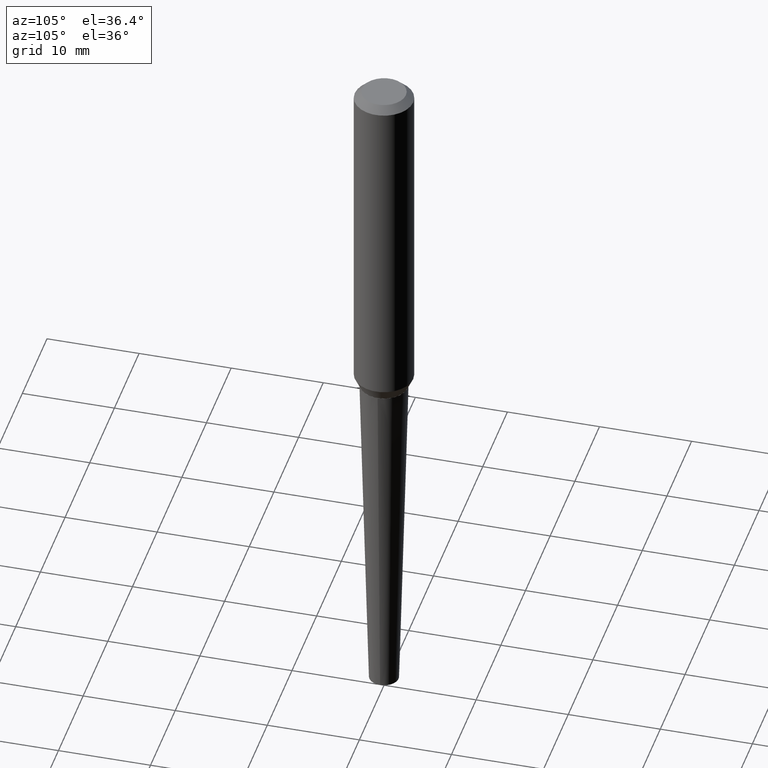
[diagram: clean part render]
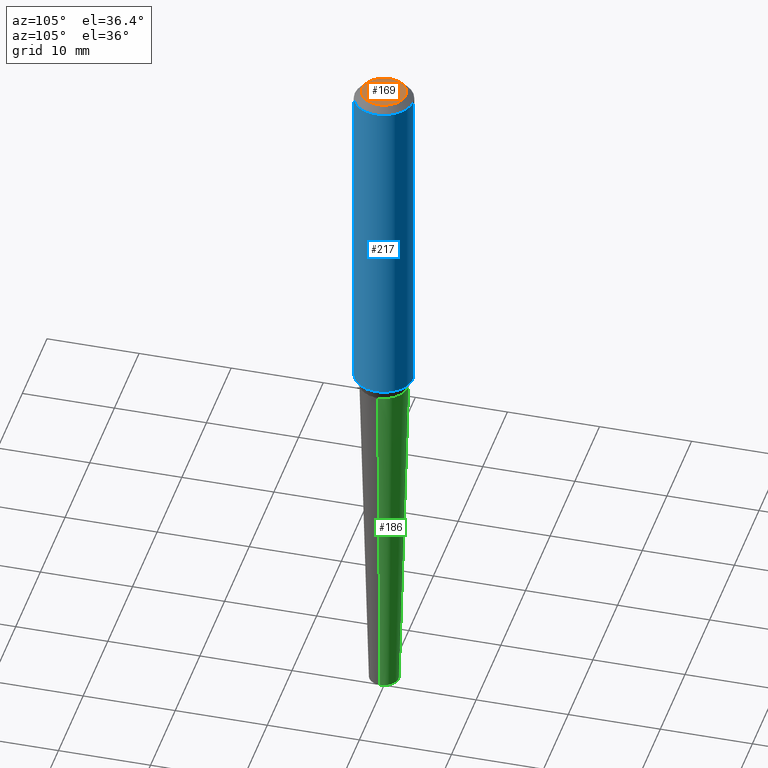
[diagram: same view with three faces highlighted in distinct colors, each labeled with its STEP entity id]
A machine part, auxiliary view with three faces highlighted in distinct colors.
Their STEP definitions:

[orange] entity #169 — the highlighted planar face has unit normal (0, -0, -1).
#16 = DIRECTION ( 'NONE',  ( -2.622229697666732842E-29, 3.238349681636345134E-15, 1.000000000000000000 ) ) ;
#46 = AXIS2_PLACEMENT_3D ( 'NONE', #355, #98, #394 ) ;
#58 = CIRCLE ( 'NONE', #149, 0.09375000000000043021 ) ;
#75 = EDGE_CURVE ( 'NONE', #209, #385, #58, .T. ) ;
#96 = EDGE_CURVE ( 'NONE', #385, #209, #184, .T. ) ;
#98 = DIRECTION ( 'NONE',  ( 2.622229697666732282E-29, -3.238349681636345134E-15, -1.000000000000000000 ) ) ;
#106 = DIRECTION ( 'NONE',  ( -6.982962677686265922E-15, -1.000000000000000000, 3.238349681636345134E-15 ) ) ;
#149 = AXIS2_PLACEMENT_3D ( 'NONE', #307, #273, #208 ) ;
#151 = ORIENTED_EDGE ( 'NONE', *, *, #75, .T. ) ;
#161 = AXIS2_PLACEMENT_3D ( 'NONE', #363, #16, #106 ) ;
#169 = ADVANCED_FACE ( 'NONE', ( #225 ), #289, .F. ) ;
#184 = CIRCLE ( 'NONE', #161, 0.09375000000000043021 ) ;
#208 = DIRECTION ( 'NONE',  ( -6.982962677686265922E-15, -1.000000000000000000, 3.238349681636345134E-15 ) ) ;
#209 = VERTEX_POINT ( 'NONE', #359 ) ;
#221 = EDGE_LOOP ( 'NONE', ( #151, #252 ) ) ;
#225 = FACE_OUTER_BOUND ( 'NONE', #221, .T. ) ;
#252 = ORIENTED_EDGE ( 'NONE', *, *, #96, .T. ) ;
#273 = DIRECTION ( 'NONE',  ( -2.622229697666732842E-29, 3.238349681636345134E-15, 1.000000000000000000 ) ) ;
#278 = CARTESIAN_POINT ( 'NONE',  ( -7.503669685062673783E-16, -0.09375000000000091593, 3.737714645724818020E-16 ) ) ;
#289 = PLANE ( 'NONE',  #46 ) ;
#307 = CARTESIAN_POINT ( 'NONE',  ( -3.397982428467409796E-30, -4.866104238714466701E-16, 7.017618191907306526E-17 ) ) ;
#355 = CARTESIAN_POINT ( 'NONE',  ( 6.546527510330871097E-16, 0.09374999999999995837, -2.589452644274532468E-16 ) ) ;
#359 = CARTESIAN_POINT ( 'NONE',  ( 7.637615428719355201E-16, 0.09374999999999995837, -2.334191007343356962E-16 ) ) ;
#363 = CARTESIAN_POINT ( 'NONE',  ( -3.397982428467409796E-30, -4.866104238714466701E-16, 7.017618191907306526E-17 ) ) ;
#385 = VERTEX_POINT ( 'NONE', #278 ) ;
#394 = DIRECTION ( 'NONE',  ( 6.982962677686265922E-15, 1.000000000000000000, -3.238349681636345134E-15 ) ) ;

[blue] entity #217 — the highlighted cylindrical surface (edge-blend (fillet) strip) has radius 3.175 mm, axis along (-0, 0, 1).
#5 = ORIENTED_EDGE ( 'NONE', *, *, #148, .T. ) ;
#52 = VERTEX_POINT ( 'NONE', #295 ) ;
#70 = AXIS2_PLACEMENT_3D ( 'NONE', #269, #170, #368 ) ;
#72 = FACE_OUTER_BOUND ( 'NONE', #206, .T. ) ;
#80 = DIRECTION ( 'NONE',  ( -2.622229697666732842E-29, 3.238349681636345134E-15, 1.000000000000000000 ) ) ;
#91 = EDGE_CURVE ( 'NONE', #119, #345, #128, .T. ) ;
#113 = DIRECTION ( 'NONE',  ( -2.622229697666732842E-29, 3.238349681636345134E-15, 1.000000000000000000 ) ) ;
#119 = VERTEX_POINT ( 'NONE', #366 ) ;
#121 = CARTESIAN_POINT ( 'NONE',  ( 8.881784197001425873E-16, 0.1249999999999949069, -1.450202152505693176 ) ) ;
#125 = VERTEX_POINT ( 'NONE', #299 ) ;
#128 = CIRCLE ( 'NONE', #364, 0.1250000000000001110 ) ;
#148 = EDGE_CURVE ( 'NONE', #345, #125, #203, .T. ) ;
#159 = EDGE_CURVE ( 'NONE', #52, #125, #300, .T. ) ;
#170 = DIRECTION ( 'NONE',  ( -2.622229697666732842E-29, 3.238349681636345134E-15, 1.000000000000000000 ) ) ;
#171 = CARTESIAN_POINT ( 'NONE',  ( -2.578535647946551579E-30, -5.878088514225828376E-16, -0.03125000000000007633 ) ) ;
#175 = AXIS2_PLACEMENT_3D ( 'NONE', #171, #369, #390 ) ;
#180 = DIRECTION ( 'NONE',  ( -2.622229697666732842E-29, 3.238349681636345134E-15, 1.000000000000000000 ) ) ;
#200 = ORIENTED_EDGE ( 'NONE', *, *, #387, .F. ) ;
#203 = LINE ( 'NONE', #332, #381 ) ;
#206 = EDGE_LOOP ( 'NONE', ( #370, #5, #344, #200 ) ) ;
#217 = ADVANCED_FACE ( 'NONE', ( #72 ), #292, .T. ) ;
#269 = CARTESIAN_POINT ( 'NONE',  ( -3.397982428467408395E-30, -4.866104238714468673E-16, 1.912385453283800096E-17 ) ) ;
#284 = LINE ( 'NONE', #376, #313 ) ;
#292 = CYLINDRICAL_SURFACE ( 'NONE', #70, 0.1250000000000003053 ) ;
#295 = CARTESIAN_POINT ( 'NONE',  ( -8.575622497214472631E-16, -0.1250000000000010825, -0.03124999999999967040 ) ) ;
#299 = CARTESIAN_POINT ( 'NONE',  ( 8.728703347107841277E-16, 0.1249999999999999167, -0.03125000000000047878 ) ) ;
#300 = CIRCLE ( 'NONE', #175, 0.1250000000000004996 ) ;
#313 = VECTOR ( 'NONE', #180, 39.37007874015748143 ) ;
#332 = CARTESIAN_POINT ( 'NONE',  ( 8.881784197001238518E-16, 0.1249999999999998335, -3.856698556717061268E-16 ) ) ;
#344 = ORIENTED_EDGE ( 'NONE', *, *, #159, .F. ) ;
#345 = VERTEX_POINT ( 'NONE', #121 ) ;
#364 = AXIS2_PLACEMENT_3D ( 'NONE', #402, #80, #396 ) ;
#366 = CARTESIAN_POINT ( 'NONE',  ( -8.728703347107494178E-16, -0.1250000000000053013, -1.450202152505692510 ) ) ;
#368 = DIRECTION ( 'NONE',  ( -6.982962677686265922E-15, -1.000000000000000000, 3.238349681636345134E-15 ) ) ;
#369 = DIRECTION ( 'NONE',  ( -2.622229697666732842E-29, 3.238349681636345134E-15, 1.000000000000000000 ) ) ;
#370 = ORIENTED_EDGE ( 'NONE', *, *, #91, .T. ) ;
#376 = CARTESIAN_POINT ( 'NONE',  ( -8.728703347107887622E-16, -0.1250000000000007772, 4.239175647373821287E-16 ) ) ;
#381 = VECTOR ( 'NONE', #113, 39.37007874015748143 ) ;
#387 = EDGE_CURVE ( 'NONE', #119, #52, #284, .T. ) ;
#390 = DIRECTION ( 'NONE',  ( -6.982962677686266711E-15, -1.000000000000000000, 3.244069492476299432E-15 ) ) ;
#396 = DIRECTION ( 'NONE',  ( -6.982962677686265133E-15, -1.000000000000000000, 2.185478394931408603E-15 ) ) ;
#402 = CARTESIAN_POINT ( 'NONE',  ( 3.462964909073907337E-29, -5.182872102746599262E-15, -1.450202152505692732 ) ) ;

[green] entity #186 — the highlighted conical surface has half-angle 1.5 deg.
#8 = FACE_OUTER_BOUND ( 'NONE', #341, .T. ) ;
#10 = EDGE_CURVE ( 'NONE', #268, #277, #136, .T. ) ;
#12 = CONICAL_SURFACE ( 'NONE', #40, 0.06249999999999988204, 0.02617993877990793666 ) ;
#40 = AXIS2_PLACEMENT_3D ( 'NONE', #223, #131, #261 ) ;
#42 = LINE ( 'NONE', #239, #68 ) ;
#49 = ORIENTED_EDGE ( 'NONE', *, *, #220, .T. ) ;
#55 = VERTEX_POINT ( 'NONE', #212 ) ;
#68 = VECTOR ( 'NONE', #372, 39.37007874015748143 ) ;
#83 = CARTESIAN_POINT ( 'NONE',  ( 7.336406418555409790E-29, -1.047444401652943635E-14, -3.000000000000000444 ) ) ;
#84 = DIRECTION ( 'NONE',  ( 1.000000000000000000, -6.982962677686263555E-15, 0.000000000000000000 ) ) ;
#102 = CARTESIAN_POINT ( 'NONE',  ( -0.1017788823537697646, -4.514039553162188741E-15, -1.500000000000000222 ) ) ;
#122 = CARTESIAN_POINT ( 'NONE',  ( 3.668203209277704895E-29, -5.237222008264718177E-15, -1.500000000000000222 ) ) ;
#124 = AXIS2_PLACEMENT_3D ( 'NONE', #83, #362, #205 ) ;
#131 = DIRECTION ( 'NONE',  ( -2.445468806185136597E-29, 3.491481338843145583E-15, 1.000000000000000000 ) ) ;
#136 = CIRCLE ( 'NONE', #400, 0.1017788823537697646 ) ;
#154 = EDGE_CURVE ( 'NONE', #55, #268, #42, .T. ) ;
#163 = CARTESIAN_POINT ( 'NONE',  ( -0.06249999999999988204, -7.272197179920781633E-15, -3.000000000000000444 ) ) ;
#176 = CARTESIAN_POINT ( 'NONE',  ( -0.06249999999999988204, -1.003035480667937531E-14, -3.000000000000000444 ) ) ;
#179 = VERTEX_POINT ( 'NONE', #163 ) ;
#186 = ADVANCED_FACE ( 'NONE', ( #8 ), #12, .T. ) ;
#195 = VECTOR ( 'NONE', #296, 39.37007874015748143 ) ;
#205 = DIRECTION ( 'NONE',  ( 1.000000000000000000, -6.982962677686276177E-15, 0.000000000000000000 ) ) ;
#212 = CARTESIAN_POINT ( 'NONE',  ( 0.06249999999999988204, -1.091087918388482802E-14, -3.000000000000000444 ) ) ;
#213 = ORIENTED_EDGE ( 'NONE', *, *, #10, .F. ) ;
#220 = EDGE_CURVE ( 'NONE', #55, #179, #243, .T. ) ;
#223 = CARTESIAN_POINT ( 'NONE',  ( 7.336406418555409790E-29, -1.047444401652943635E-14, -3.000000000000000444 ) ) ;
#239 = CARTESIAN_POINT ( 'NONE',  ( 0.06249999999999988204, -1.091087918388482802E-14, -3.000000000000000444 ) ) ;
#243 = CIRCLE ( 'NONE', #124, 0.06249999999999988204 ) ;
#261 = DIRECTION ( 'NONE',  ( 1.000000000000000000, -6.982962677686276177E-15, 0.000000000000000000 ) ) ;
#262 = EDGE_CURVE ( 'NONE', #179, #277, #272, .T. ) ;
#268 = VERTEX_POINT ( 'NONE', #328 ) ;
#272 = LINE ( 'NONE', #176, #195 ) ;
#277 = VERTEX_POINT ( 'NONE', #102 ) ;
#296 = DIRECTION ( 'NONE',  ( -0.02617694830786614774, 3.676283300035236100E-15, 0.9996573249755573709 ) ) ;
#328 = CARTESIAN_POINT ( 'NONE',  ( 0.1017788823537697646, -5.947940145117713967E-15, -1.500000000000000222 ) ) ;
#341 = EDGE_LOOP ( 'NONE', ( #49, #412, #213, #351 ) ) ;
#351 = ORIENTED_EDGE ( 'NONE', *, *, #154, .F. ) ;
#362 = DIRECTION ( 'NONE',  ( -2.445468806185136597E-29, 3.491481338843145583E-15, 1.000000000000000000 ) ) ;
#372 = DIRECTION ( 'NONE',  ( 0.02617694830786614774, 3.307492242340464735E-15, 0.9996573249755573709 ) ) ;
#400 = AXIS2_PLACEMENT_3D ( 'NONE', #122, #407, #84 ) ;
#407 = DIRECTION ( 'NONE',  ( -2.445468806185136597E-29, 3.491481338843145583E-15, 1.000000000000000000 ) ) ;
#412 = ORIENTED_EDGE ( 'NONE', *, *, #262, .T. ) ;